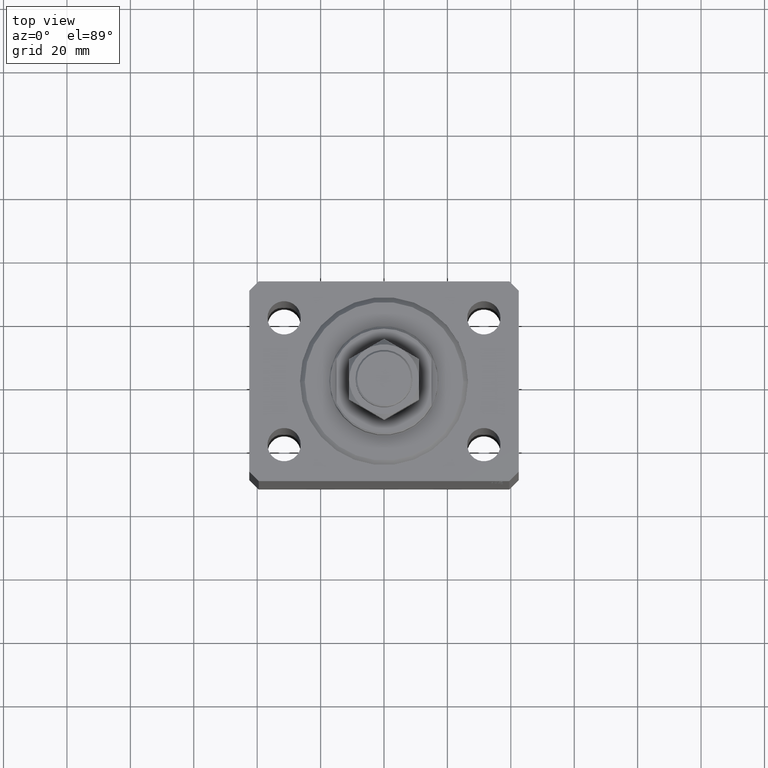
[diagram: clean part render]
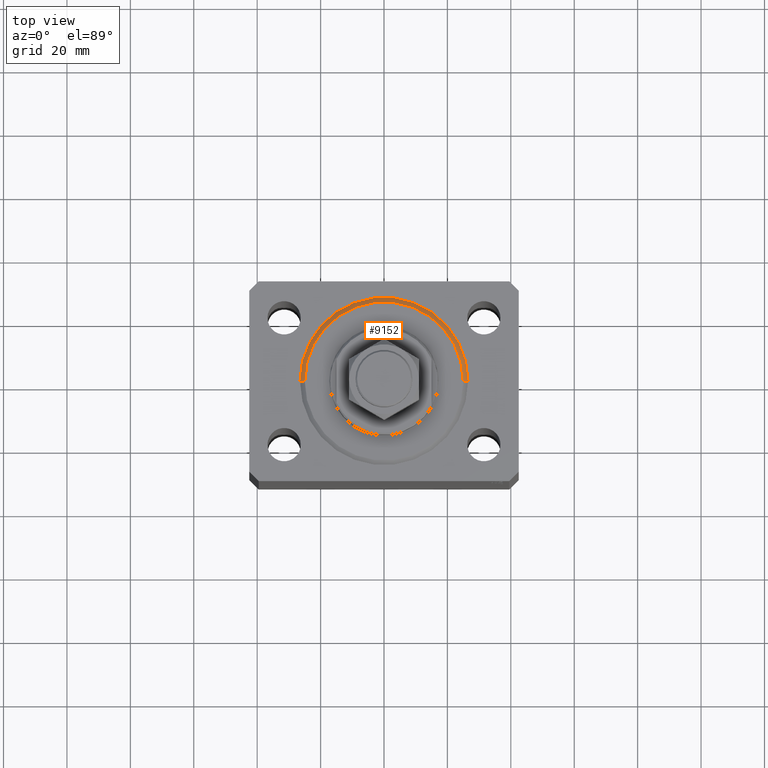
[diagram: same view with one face highlighted and labeled with its STEP entity id]
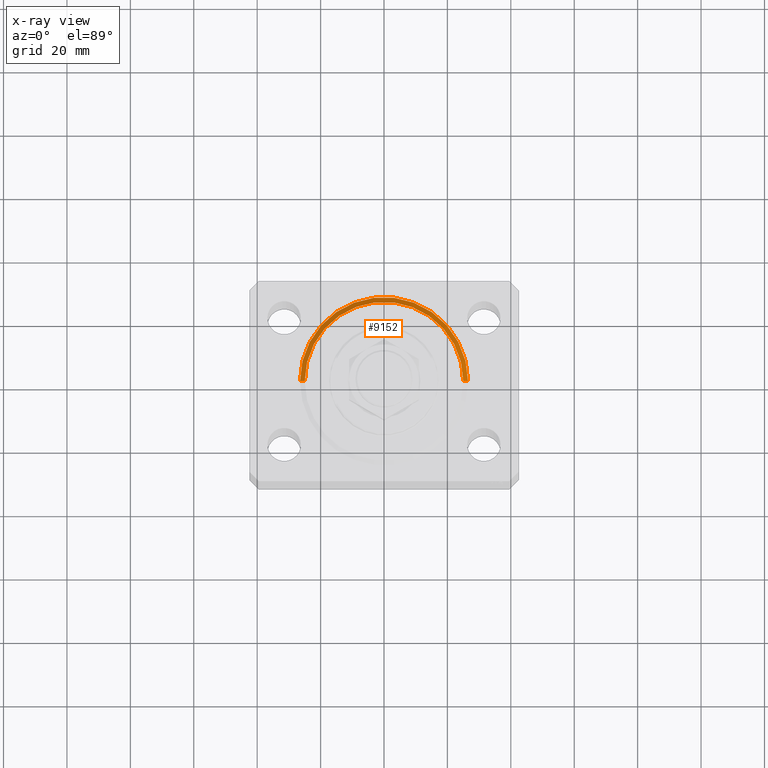
[diagram: x-ray of the same camera — body ghosted, the highlighted face saturated]
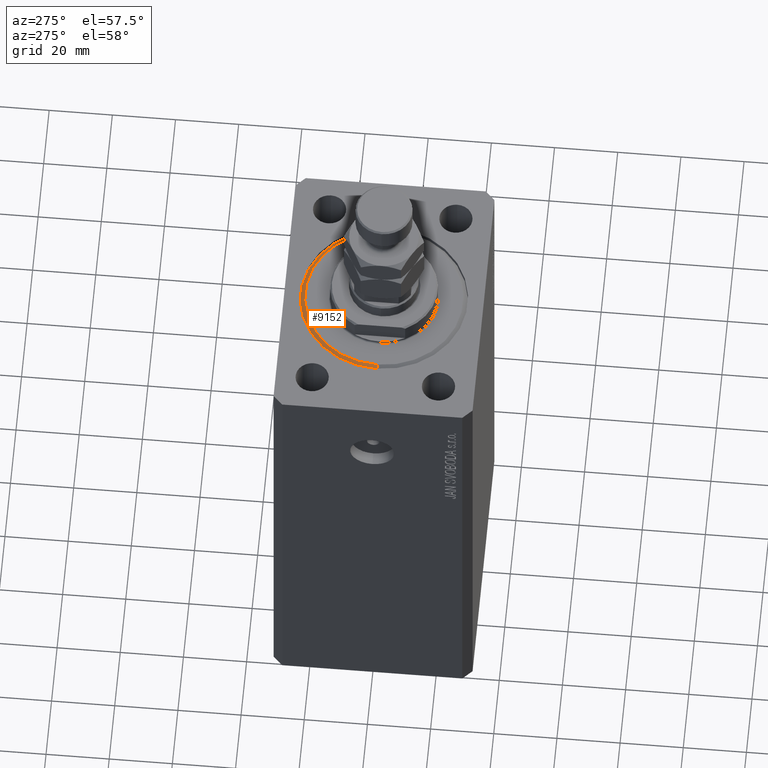
[diagram: same view with one face highlighted and labeled with its STEP entity id]
A machine part, top view. The second image highlights one B-rep face of the part: STEP entity #9152.
The next image is the same camera in x-ray: the body ghosted, the highlighted face saturated — about 0% of this face is hidden behind the body in this view.
A second angle (auxiliary view) of the same face is appended — the face is thin or edge-on in the first view.
In plain terms, the highlighted conical surface has half-angle 45 deg.
Its self-contained STEP definition (entity closure, byte-faithful):
#1855 = VERTEX_POINT ( 'NONE', #2281 ) ;
#1942 = DIRECTION ( 'NONE',  ( 1.000000000000000000, 0.000000000000000000, 0.000000000000000000 ) ) ;
#2281 = CARTESIAN_POINT ( 'NONE',  ( -26.50000000000000355, 0.000000000000000000, 1.500000000000018652 ) ) ;
#3466 = ORIENTED_EDGE ( 'NONE', *, *, #27642, .F. ) ;
#4579 = ORIENTED_EDGE ( 'NONE', *, *, #22286, .F. ) ;
#5225 = CIRCLE ( 'NONE', #6735, 26.50000000000000355 ) ;
#6303 = VECTOR ( 'NONE', #26404, 1000.000000000000000 ) ;
#6735 = AXIS2_PLACEMENT_3D ( 'NONE', #19502, #33983, #1942 ) ;
#8487 = CARTESIAN_POINT ( 'NONE',  ( 26.50000000000000355, 3.245314017740486554E-15, 1.500000000000018652 ) ) ;
#8855 = EDGE_LOOP ( 'NONE', ( #10802, #35844, #4579, #3466 ) ) ;
#9028 = VERTEX_POINT ( 'NONE', #42928 ) ;
#9152 = ADVANCED_FACE ( 'NONE', ( #12022 ), #39604, .T. ) ;
#9215 = DIRECTION ( 'NONE',  ( -0.000000000000000000, -0.000000000000000000, 1.000000000000000000 ) ) ;
#10802 = ORIENTED_EDGE ( 'NONE', *, *, #16805, .F. ) ;
#11624 = CARTESIAN_POINT ( 'NONE',  ( 24.99999999999998224, 0.000000000000000000, 0.000000000000000000 ) ) ;
#12022 = FACE_OUTER_BOUND ( 'NONE', #8855, .T. ) ;
#12356 = CARTESIAN_POINT ( 'NONE',  ( -26.50000000000000355, 3.245314017740486554E-15, 1.500000000000018652 ) ) ;
#12625 = CARTESIAN_POINT ( 'NONE',  ( 0.000000000000000000, 0.000000000000000000, 0.000000000000000000 ) ) ;
#16805 = EDGE_CURVE ( 'NONE', #9028, #38676, #33571, .T. ) ;
#17736 = CARTESIAN_POINT ( 'NONE',  ( 26.50000000000000355, 0.000000000000000000, 1.500000000000018652 ) ) ;
#19385 = LINE ( 'NONE', #12356, #6303 ) ;
#19502 = CARTESIAN_POINT ( 'NONE',  ( 0.000000000000000000, 0.000000000000000000, 1.500000000000018652 ) ) ;
#22286 = EDGE_CURVE ( 'NONE', #29267, #1855, #5225, .T. ) ;
#24521 = LINE ( 'NONE', #17736, #37476 ) ;
#25384 = AXIS2_PLACEMENT_3D ( 'NONE', #12625, #37881, #41629 ) ;
#26404 = DIRECTION ( 'NONE',  ( -0.7071067811865483499, 8.659560562354942719E-17, 0.7071067811865466846 ) ) ;
#27642 = EDGE_CURVE ( 'NONE', #38676, #29267, #24521, .T. ) ;
#27802 = DIRECTION ( 'NONE',  ( 0.7071067811865483499, 0.000000000000000000, 0.7071067811865466846 ) ) ;
#29267 = VERTEX_POINT ( 'NONE', #8487 ) ;
#33312 = DIRECTION ( 'NONE',  ( 1.000000000000000000, 0.000000000000000000, 0.000000000000000000 ) ) ;
#33571 = CIRCLE ( 'NONE', #25384, 24.99999999999998224 ) ;
#33983 = DIRECTION ( 'NONE',  ( -0.000000000000000000, -0.000000000000000000, 1.000000000000000000 ) ) ;
#35844 = ORIENTED_EDGE ( 'NONE', *, *, #37704, .T. ) ;
#35869 = AXIS2_PLACEMENT_3D ( 'NONE', #36819, #9215, #33312 ) ;
#36819 = CARTESIAN_POINT ( 'NONE',  ( 0.000000000000000000, 0.000000000000000000, 1.500000000000018652 ) ) ;
#37476 = VECTOR ( 'NONE', #27802, 1000.000000000000000 ) ;
#37704 = EDGE_CURVE ( 'NONE', #9028, #1855, #19385, .T. ) ;
#37881 = DIRECTION ( 'NONE',  ( -0.000000000000000000, -0.000000000000000000, -1.000000000000000000 ) ) ;
#38676 = VERTEX_POINT ( 'NONE', #11624 ) ;
#39604 = CONICAL_SURFACE ( 'NONE', #35869, 26.50000000000000355, 0.7853981633974495002 ) ;
#41629 = DIRECTION ( 'NONE',  ( 1.000000000000000000, 0.000000000000000000, 0.000000000000000000 ) ) ;
#42928 = CARTESIAN_POINT ( 'NONE',  ( -24.99999999999998224, 3.153465507804433615E-15, 0.000000000000000000 ) ) ;